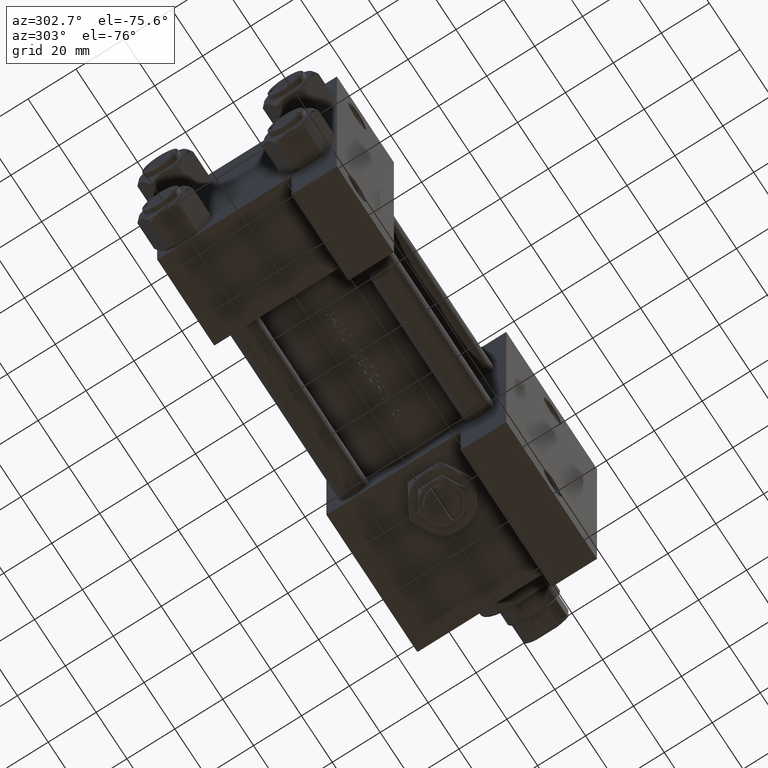
[diagram: clean part render]
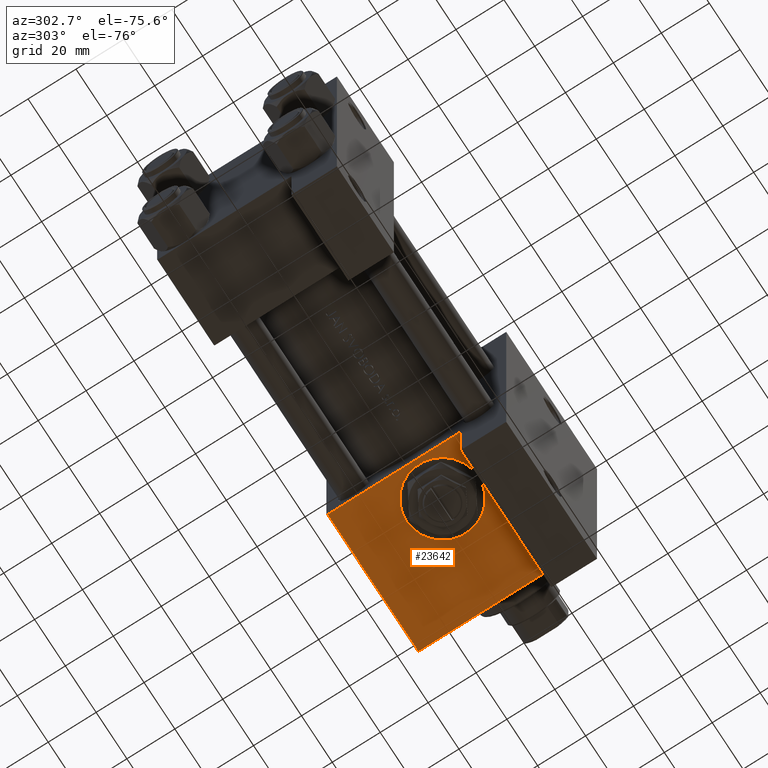
[diagram: same view with one face highlighted and labeled with its STEP entity id]
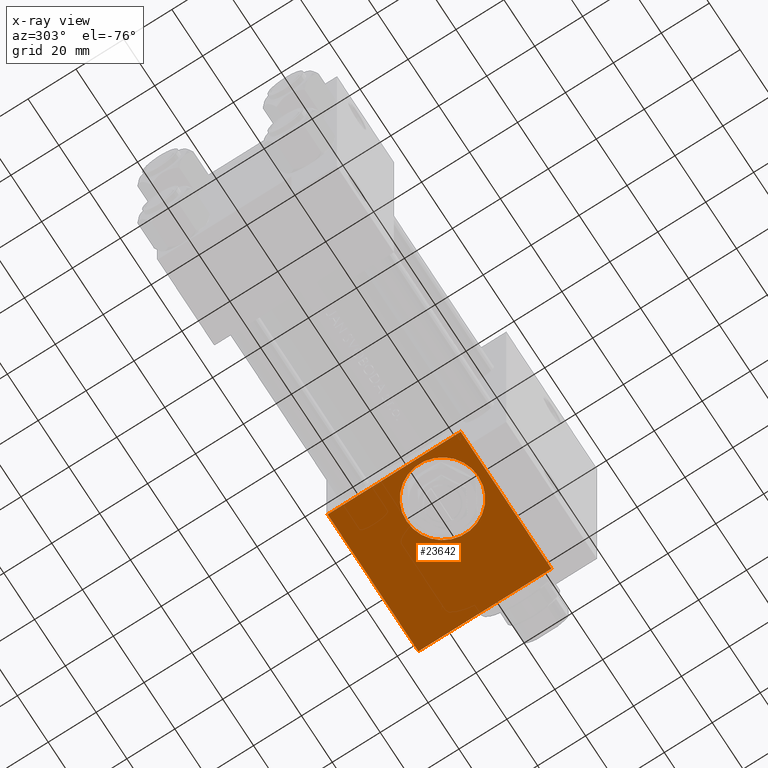
[diagram: x-ray of the same camera — body ghosted, the highlighted face saturated]
A machine part, auxiliary view. The second image highlights one B-rep face of the part: STEP entity #23642.
The next image is the same camera in x-ray: the body ghosted, the highlighted face saturated — about 0% of this face is hidden behind the body in this view.
In plain terms, the highlighted planar face has unit normal (0, 0, -1).
Its self-contained STEP definition (entity closure, byte-faithful):
#475 = ORIENTED_EDGE ( 'NONE', *, *, #30113, .T. ) ;
#1669 = LINE ( 'NONE', #16846, #48197 ) ;
#1891 = DIRECTION ( 'NONE',  ( 0.000000000000000000, 0.000000000000000000, -1.000000000000000000 ) ) ;
#2179 = VERTEX_POINT ( 'NONE', #35246 ) ;
#2851 = CARTESIAN_POINT ( 'NONE',  ( 168.9999999999999716, 37.50000000000000000, 37.49999999999999289 ) ) ;
#4076 = VECTOR ( 'NONE', #39459, 1000.000000000000000 ) ;
#4110 = VERTEX_POINT ( 'NONE', #40994 ) ;
#4676 = DIRECTION ( 'NONE',  ( 1.000000000000000000, 0.000000000000000000, 0.000000000000000000 ) ) ;
#4748 = CARTESIAN_POINT ( 'NONE',  ( 127.0000000000000000, 37.50000000000000000, 15.00000000000002487 ) ) ;
#6548 = VECTOR ( 'NONE', #1891, 1000.000000000000000 ) ;
#8831 = LINE ( 'NONE', #20020, #4076 ) ;
#9158 = VECTOR ( 'NONE', #18014, 1000.000000000000000 ) ;
#9490 = ORIENTED_EDGE ( 'NONE', *, *, #14587, .F. ) ;
#11899 = CARTESIAN_POINT ( 'NONE',  ( 109.9999999999999858, 37.50000000000000000, 36.99999999999996447 ) ) ;
#12265 = EDGE_LOOP ( 'NONE', ( #9490, #26058 ) ) ;
#13875 = FACE_OUTER_BOUND ( 'NONE', #34231, .T. ) ;
#14398 = CARTESIAN_POINT ( 'NONE',  ( 127.0000000000000000, 37.50000000000000000, 0.000000000000000000 ) ) ;
#14587 = EDGE_CURVE ( 'NONE', #23185, #4110, #44709, .T. ) ;
#16581 = VERTEX_POINT ( 'NONE', #46919 ) ;
#16834 = EDGE_CURVE ( 'NONE', #4110, #23185, #28856, .T. ) ;
#16846 = CARTESIAN_POINT ( 'NONE',  ( 168.9999999999999716, 37.50000000000000000, 36.99999999999996447 ) ) ;
#17843 = DIRECTION ( 'NONE',  ( -0.000000000000000000, 1.000000000000000000, 0.000000000000000000 ) ) ;
#18014 = DIRECTION ( 'NONE',  ( 0.000000000000000000, 0.000000000000000000, -1.000000000000000000 ) ) ;
#20020 = CARTESIAN_POINT ( 'NONE',  ( 109.9999999999999858, 37.50000000000000000, -18.50000000000000000 ) ) ;
#21904 = CARTESIAN_POINT ( 'NONE',  ( 127.0000000000000000, 37.50000000000000000, 0.000000000000000000 ) ) ;
#22107 = DIRECTION ( 'NONE',  ( 0.000000000000000000, 0.000000000000000000, 1.000000000000000000 ) ) ;
#22362 = DIRECTION ( 'NONE',  ( 0.000000000000000000, 1.000000000000000000, 0.000000000000000000 ) ) ;
#22845 = EDGE_CURVE ( 'NONE', #16581, #40225, #33467, .T. ) ;
#23185 = VERTEX_POINT ( 'NONE', #4748 ) ;
#23642 = ADVANCED_FACE ( 'NONE', ( #43515, #13875 ), #44019, .T. ) ;
#25777 = LINE ( 'NONE', #36012, #6548 ) ;
#25896 = AXIS2_PLACEMENT_3D ( 'NONE', #39779, #17843, #37043 ) ;
#26058 = ORIENTED_EDGE ( 'NONE', *, *, #16834, .F. ) ;
#28856 = CIRCLE ( 'NONE', #45573, 15.00000000000002487 ) ;
#30113 = EDGE_CURVE ( 'NONE', #42145, #16581, #1669, .T. ) ;
#33467 = LINE ( 'NONE', #2851, #9158 ) ;
#34231 = EDGE_LOOP ( 'NONE', ( #35842, #475, #43070, #41658 ) ) ;
#35246 = CARTESIAN_POINT ( 'NONE',  ( 109.9999999999999858, 37.50000000000000000, -18.50000000000000355 ) ) ;
#35842 = ORIENTED_EDGE ( 'NONE', *, *, #48179, .F. ) ;
#36012 = CARTESIAN_POINT ( 'NONE',  ( 109.9999999999999858, 37.50000000000000000, 37.49999999999999289 ) ) ;
#37043 = DIRECTION ( 'NONE',  ( 0.000000000000000000, -0.000000000000000000, 1.000000000000000000 ) ) ;
#39459 = DIRECTION ( 'NONE',  ( -1.000000000000000000, 3.528251137579946599E-16, -0.000000000000000000 ) ) ;
#39779 = CARTESIAN_POINT ( 'NONE',  ( 168.9999999999999716, 37.50000000000000000, 37.49999999999999289 ) ) ;
#40225 = VERTEX_POINT ( 'NONE', #47278 ) ;
#40603 = DIRECTION ( 'NONE',  ( 0.000000000000000000, 1.000000000000000000, 0.000000000000000000 ) ) ;
#40994 = CARTESIAN_POINT ( 'NONE',  ( 127.0000000000000000, 37.50000000000000000, -15.00000000000002487 ) ) ;
#41658 = ORIENTED_EDGE ( 'NONE', *, *, #46306, .T. ) ;
#42145 = VERTEX_POINT ( 'NONE', #11899 ) ;
#43070 = ORIENTED_EDGE ( 'NONE', *, *, #22845, .T. ) ;
#43515 = FACE_BOUND ( 'NONE', #12265, .T. ) ;
#43840 = DIRECTION ( 'NONE',  ( 0.000000000000000000, 0.000000000000000000, 1.000000000000000000 ) ) ;
#44019 = PLANE ( 'NONE',  #25896 ) ;
#44709 = CIRCLE ( 'NONE', #47886, 15.00000000000002487 ) ;
#45573 = AXIS2_PLACEMENT_3D ( 'NONE', #14398, #22362, #22107 ) ;
#46306 = EDGE_CURVE ( 'NONE', #40225, #2179, #8831, .T. ) ;
#46919 = CARTESIAN_POINT ( 'NONE',  ( 168.9999999999999716, 37.50000000000000000, 36.99999999999996447 ) ) ;
#47278 = CARTESIAN_POINT ( 'NONE',  ( 168.9999999999999716, 37.49999999999997868, -18.50000000000000000 ) ) ;
#47886 = AXIS2_PLACEMENT_3D ( 'NONE', #21904, #40603, #43840 ) ;
#48179 = EDGE_CURVE ( 'NONE', #42145, #2179, #25777, .T. ) ;
#48197 = VECTOR ( 'NONE', #4676, 1000.000000000000000 ) ;